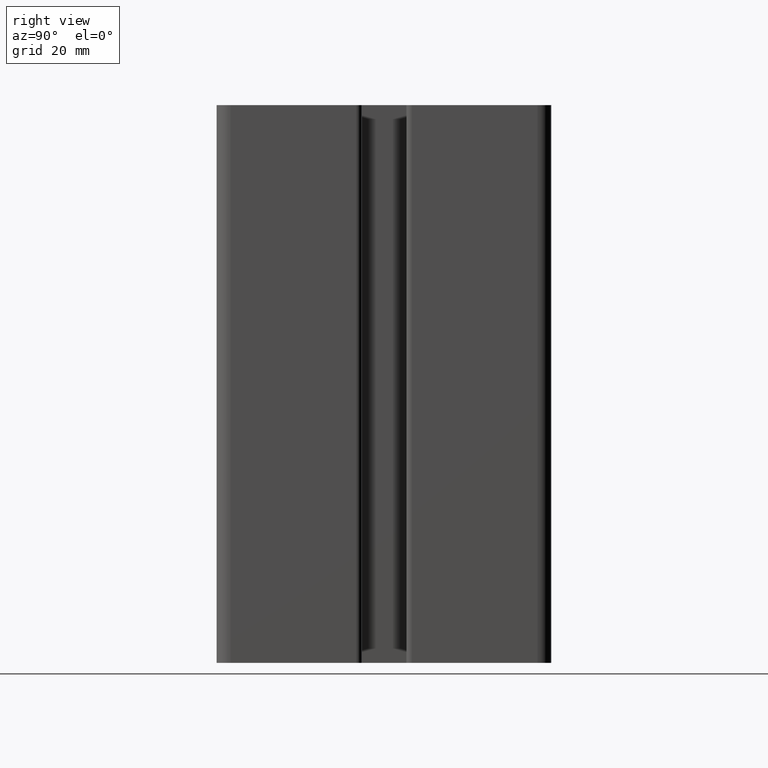
[diagram: clean part render]
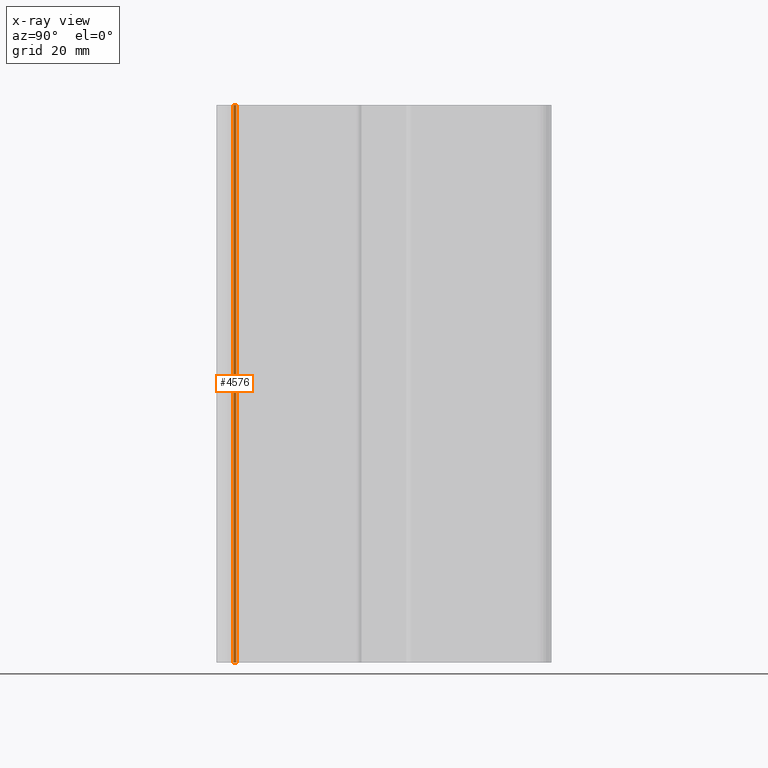
[diagram: x-ray — body ghosted, one internal face saturated and labeled with its STEP entity id]
A machine part, right view, then the same camera in x-ray: the body is ghosted and one INTERNAL B-rep face — a face not visible from any outside direction — is saturated and labeled: STEP entity #4576.
In plain terms, the highlighted planar face has unit normal (1, 0, 0).
Its self-contained STEP definition (entity closure, byte-faithful):
#80=PLANE('',#4913);
#248=FACE_OUTER_BOUND('',#484,.T.);
#484=EDGE_LOOP('',(#3349,#3350,#3351,#3352));
#828=LINE('',#7170,#1292);
#830=LINE('',#7174,#1294);
#831=LINE('',#7176,#1295);
#832=LINE('',#7177,#1296);
#1292=VECTOR('',#5767,100.);
#1294=VECTOR('',#5771,0.500001995948853);
#1295=VECTOR('',#5772,100.);
#1296=VECTOR('',#5773,0.500001995948853);
#1997=VERTEX_POINT('',#7167);
#1998=VERTEX_POINT('',#7169);
#1999=VERTEX_POINT('',#7173);
#2000=VERTEX_POINT('',#7175);
#2556=EDGE_CURVE('',#1998,#1997,#828,.T.);
#2558=EDGE_CURVE('',#1999,#1997,#830,.T.);
#2559=EDGE_CURVE('',#2000,#1999,#831,.T.);
#2560=EDGE_CURVE('',#1998,#2000,#832,.T.);
#3349=ORIENTED_EDGE('',*,*,#2558,.F.);
#3350=ORIENTED_EDGE('',*,*,#2559,.F.);
#3351=ORIENTED_EDGE('',*,*,#2560,.F.);
#3352=ORIENTED_EDGE('',*,*,#2556,.T.);
#4576=ADVANCED_FACE('',(#248),#80,.F.);
#4913=AXIS2_PLACEMENT_3D('',#7172,#5769,#5770);
#5767=DIRECTION('',(0.,0.,1.));
#5769=DIRECTION('center_axis',(1.,0.,0.));
#5770=DIRECTION('ref_axis',(0.,1.,0.));
#5771=DIRECTION('',(0.,-1.,0.));
#5772=DIRECTION('',(0.,0.,1.));
#5773=DIRECTION('',(0.,1.,0.));
#7167=CARTESIAN_POINT('',(-8.00000000000002,-27.,100.));
#7169=CARTESIAN_POINT('',(-8.00000000000002,-27.,0.));
#7170=CARTESIAN_POINT('',(-8.00000000000002,-27.,0.));
#7172=CARTESIAN_POINT('Origin',(-8.00000000000002,-27.,0.));
#7173=CARTESIAN_POINT('',(-8.00000000000002,-26.4999980040511,100.));
#7174=CARTESIAN_POINT('',(-8.00000000000002,-13.5,100.));
#7175=CARTESIAN_POINT('',(-8.00000000000002,-26.4999980040511,0.));
#7176=CARTESIAN_POINT('',(-8.00000000000002,-26.4999980040511,0.));
#7177=CARTESIAN_POINT('',(-8.00000000000002,-13.5,0.));